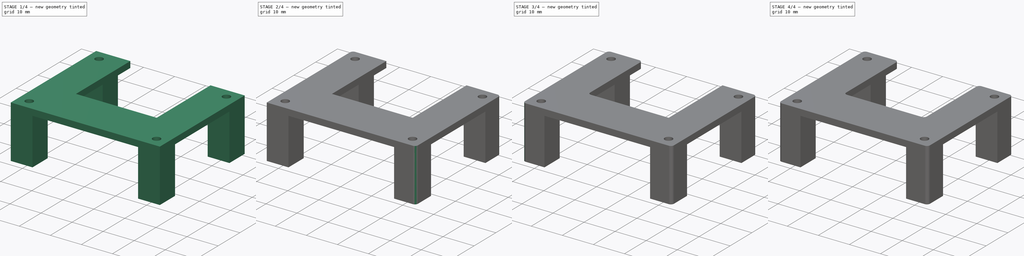
[diagram: build sequence overview — one tinted view per stage of 4, left to right]
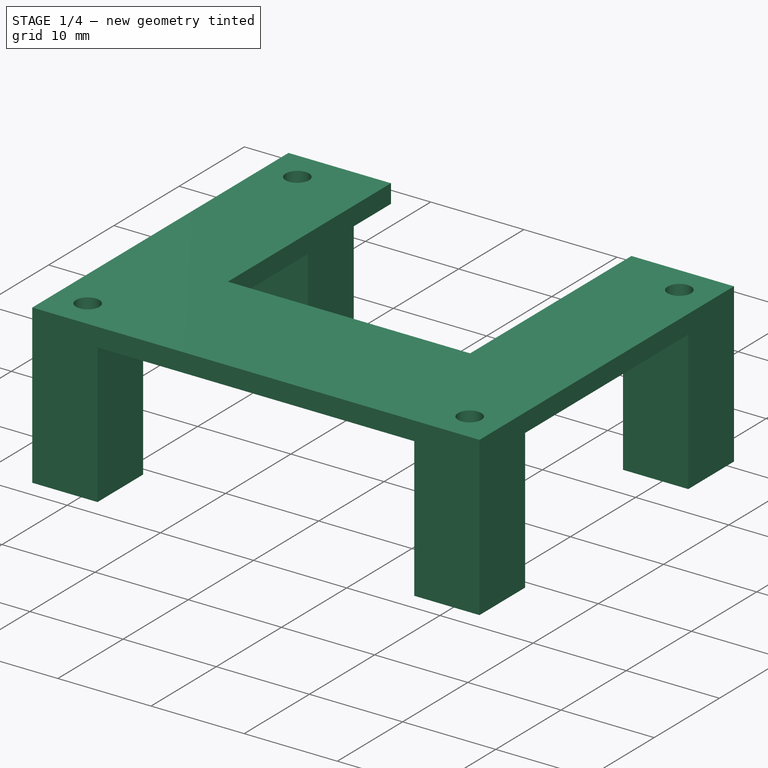
[diagram: stage 1 of 4 — iso view after this stage's code; geometry added in this stage tinted green]
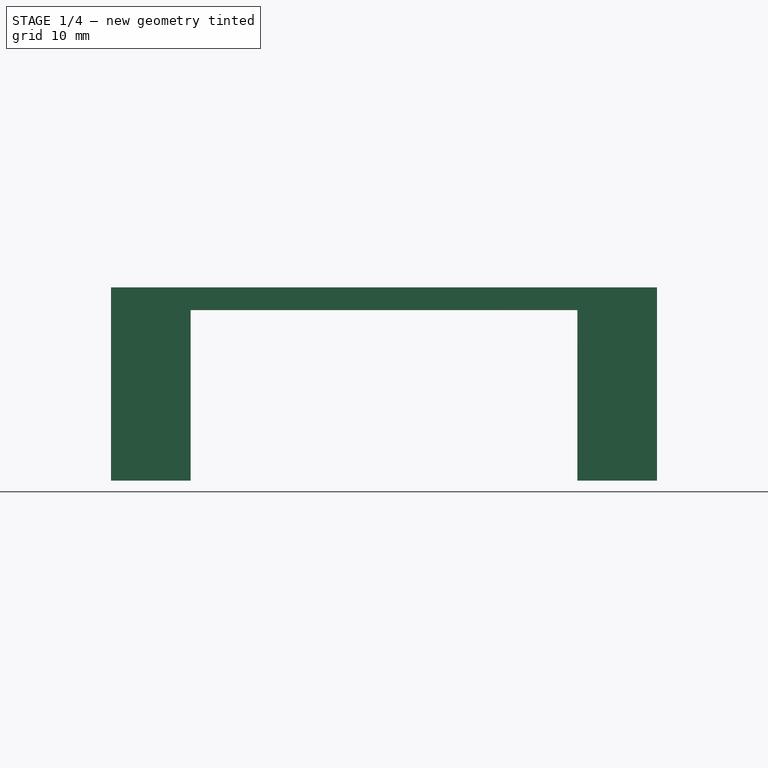
[diagram: stage 1 of 4 — front view after this stage's code; geometry added in this stage tinted green]
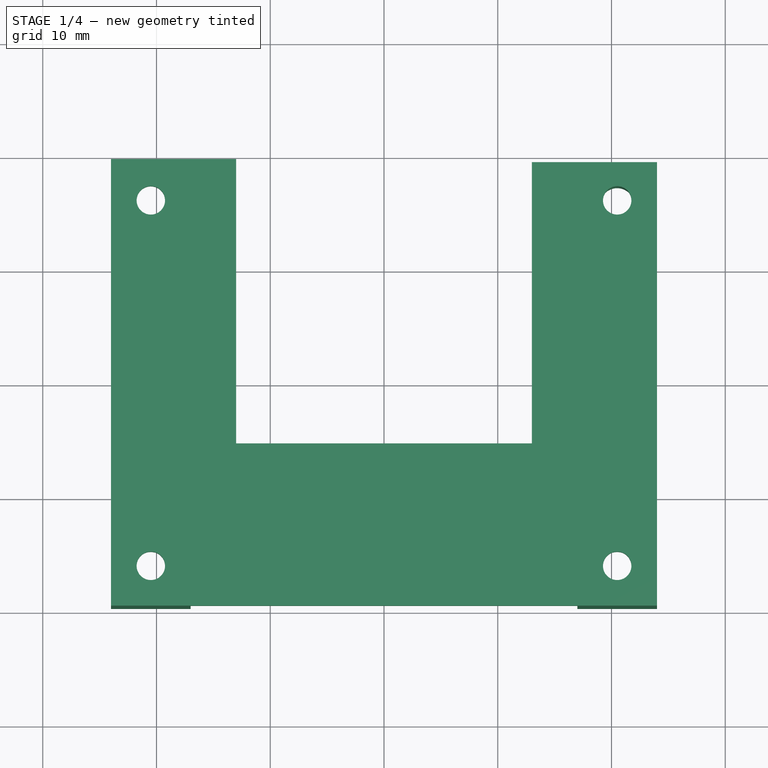
[diagram: stage 1 of 4 — top view after this stage's code; geometry added in this stage tinted green]
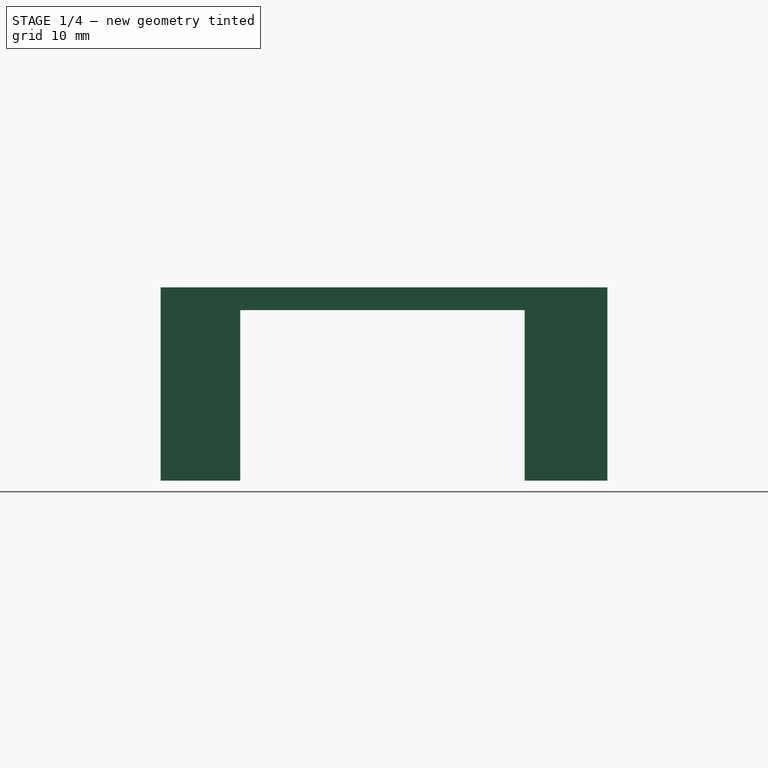
[diagram: stage 1 of 4 — right view after this stage's code; geometry added in this stage tinted green]
FCSTD DOCUMENT  (FreeCAD 0.18R16146 (Git))
Label: thermostat front cover 2
License: All rights reserved
LicenseURL: http://en.wikipedia.org/wiki/All_rights_reserved
objects: PartDesign::Fillet×8, Sketcher::SketchObject×2, PartDesign::Pad×2, PartDesign::Body×1
note: 15 computed .brp shape members not serialized (recipe doc carries the construction recipe); baked Part::Feature solids carry a one-line shape summary decoded from their .brp

FEATURE [Sketcher::SketchObject] Sketch
  MapMode = 5
  Support = -> [XY_Plane]
  sketch-geometry (12):
    g0: LineSegment StartX=24 StartY=19.3644 StartZ=0 EndX=24 EndY=-19.6356 EndZ=0
    g1: LineSegment StartX=24 StartY=-19.6356 StartZ=0 EndX=-24 EndY=-19.6356 EndZ=0
    g2: LineSegment StartX=-24 StartY=-19.6356 StartZ=0 EndX=-24 EndY=19.6356 EndZ=0
    g3: Circle CenterX=-20.5 CenterY=16 CenterZ=0 NormalX=0 NormalY=0 NormalZ=1 AngleXU=0 Radius=1.25
    g4: Circle CenterX=20.5 CenterY=-16.1356 CenterZ=0 NormalX=0 NormalY=0 NormalZ=1 AngleXU=0 Radius=1.25
    g5: Circle CenterX=20.5 CenterY=16 CenterZ=0 NormalX=0 NormalY=0 NormalZ=1 AngleXU=0 Radius=1.25
    g6: Circle CenterX=-20.5 CenterY=-16.1356 CenterZ=0 NormalX=0 NormalY=0 NormalZ=1 AngleXU=0 Radius=1.25
    g7: LineSegment StartX=-24 StartY=19.6356 StartZ=0 EndX=-13 EndY=19.6356 EndZ=0
    g8: LineSegment StartX=-13 StartY=19.6356 StartZ=0 EndX=-13 EndY=-5.36439 EndZ=0
    g9: LineSegment StartX=-13 StartY=-5.36439 StartZ=0 EndX=13 EndY=-5.36439 EndZ=0
    g10: LineSegment StartX=13 StartY=-5.36439 StartZ=0 EndX=13 EndY=19.3644 EndZ=0
    g11: LineSegment StartX=13 StartY=19.3644 StartZ=0 EndX=24 EndY=19.3644 EndZ=0
  constraints (32):
    c: Coincident(g1,g2)
    c: Coincident(g0,g1)
    c: DistanceY(g0,g0) = 39
    c: DistanceX(g2,g0) = 48
    c: Radius(g6) = 1.25
    c: Radius(g3) = 1.25
    c: Radius(g5) = 1.25
    c: Radius(g4) = 1.25
    c: Symmetric(g2,g0,g-1)
    c: Distance(g3,g2) = 3.5
    c: Distance(g6,g2) = 3.5
    c: Distance(g6,g1) = 3.5
    c: Distance(g4,g1) = 3.5
    c: Distance(g4,g0) = 3.5
    c: Distance(g5,g0) = 3.5
    c: Vertical(g2)
    c: Vertical(g0)
    c: Horizontal(g1)
    c: Coincident(g2,g7)
    c: Horizontal(g7)
    c: Coincident(g7,g8)
    c: Vertical(g8)
    c: Coincident(g8,g9)
    c: Horizontal(g9)
    c: Coincident(g9,g10)
    c: Vertical(g10)
    c: Coincident(g10,g11)
    c: Coincident(g11,g0)
    c: Horizontal(g11)
    c: DistanceX(g7,g7) = 11
    c: DistanceX(g11,g11) = 11
    c: DistanceY(g8,g8) = 25
FEATURE [PartDesign::Pad] Pad
  Length = 2
  Length2 = 100
  Profile = -> Sketch
  Type = 0
FEATURE [Sketcher::SketchObject] Sketch001
  ExternalGeometry = -> [Sketch]
  MapMode = 5
  Support = -> [XY_Plane]
  sketch-geometry (20):
    g0: LineSegment StartX=-24 StartY=19.6356 StartZ=0 EndX=-17 EndY=19.6356 EndZ=0
    g1: LineSegment StartX=-17 StartY=19.6356 StartZ=0 EndX=-17 EndY=12.6356 EndZ=0
    g2: LineSegment StartX=-17 StartY=12.6356 StartZ=0 EndX=-24 EndY=12.6356 EndZ=0
    g3: LineSegment StartX=-24 StartY=12.6356 StartZ=0 EndX=-24 EndY=19.6356 EndZ=0
    g4: LineSegment StartX=17 StartY=19.3644 StartZ=0 EndX=24 EndY=19.3644 EndZ=0
    g5: LineSegment StartX=24 StartY=19.3644 StartZ=0 EndX=24 EndY=12.3644 EndZ=0
    g6: LineSegment StartX=24 StartY=12.3644 StartZ=0 EndX=17 EndY=12.3644 EndZ=0
    g7: LineSegment StartX=17 StartY=12.3644 StartZ=0 EndX=17 EndY=19.3644 EndZ=0
    g8: LineSegment StartX=-24 StartY=-12.6356 StartZ=0 EndX=-17 EndY=-12.6356 EndZ=0
    g9: LineSegment StartX=-17 StartY=-12.6356 StartZ=0 EndX=-17 EndY=-19.6356 EndZ=0
    g10: LineSegment StartX=-17 StartY=-19.6356 StartZ=0 EndX=-24 EndY=-19.6356 EndZ=0
    g11: LineSegment StartX=-24 StartY=-19.6356 StartZ=0 EndX=-24 EndY=-12.6356 EndZ=0
    g12: LineSegment StartX=17 StartY=-12.6356 StartZ=0 EndX=24 EndY=-12.6356 EndZ=0
    g13: LineSegment StartX=24 StartY=-12.6356 StartZ=0 EndX=24 EndY=-19.6356 EndZ=0
    g14: LineSegment StartX=24 StartY=-19.6356 StartZ=0 EndX=17 EndY=-19.6356 EndZ=0
    g15: LineSegment StartX=17 StartY=-19.6356 StartZ=0 EndX=17 EndY=-12.6356 EndZ=0
    g16: Circle CenterX=-20.5 CenterY=16.1356 CenterZ=0 NormalX=0 NormalY=0 NormalZ=1 AngleXU=0 Radius=1.5
    g17: Circle CenterX=-20.5 CenterY=-16.1356 CenterZ=0 NormalX=0 NormalY=0 NormalZ=1 AngleXU=0 Radius=1.5
    g18: Circle CenterX=20.5 CenterY=-16.1356 CenterZ=0 NormalX=0 NormalY=0 NormalZ=1 AngleXU=0 Radius=1.5
    g19: Circle CenterX=20.5 CenterY=15.8644 CenterZ=0 NormalX=0 NormalY=0 NormalZ=1 AngleXU=0 Radius=1.5
  constraints (52):
    c: Coincident(g0,g1)
    c: Coincident(g1,g2)
    c: Coincident(g2,g3)
    c: Coincident(g3,g0)
    c: Horizontal(g0)
    c: Horizontal(g2)
    c: Vertical(g1)
    c: Vertical(g3)
    c: DistanceY(g3,g3) = 7
    c: Equal(g3,g0)
    c: Coincident(g4,g5)
    c: Coincident(g5,g6)
    c: Coincident(g6,g7)
    c: Coincident(g7,g4)
    c: Horizontal(g4)
    c: Horizontal(g6)
    c: Vertical(g5)
    c: Vertical(g7)
    c: Coincident(g8,g9)
    c: Coincident(g9,g10)
    c: Coincident(g10,g11)
    c: Coincident(g11,g8)
    c: Horizontal(g8)
    c: Horizontal(g10)
    c: Vertical(g9)
    c: Vertical(g11)
    c: Coincident(g12,g13)
    c: Coincident(g13,g14)
    c: Coincident(g14,g15)
    c: Coincident(g15,g12)
    c: Horizontal(g12)
    c: Horizontal(g14)
    c: Vertical(g13)
    c: Vertical(g15)
    c: Equal(g0,g8)
    c: Equal(g0,g12)
    c: Equal(g0,g4)
    c: Equal(g1,g7)
    c: Equal(g1,g9)
    c: Equal(g1,g15)
    c: Coincident(g0,g-4)
    c: Coincident(g10,g-5)
    c: Coincident(g13,g-6)
    c: Coincident(g4,g-7)
    c: Symmetric(g0,g1,g16)
    c: Radius(g16) = 1.5
    c: Symmetric(g8,g9,g17)
    c: Symmetric(g12,g13,g18)
    c: Symmetric(g4,g5,g19)
    c: Equal(g16,g17)
    c: Equal(g16,g19)
    c: Equal(g16,g18)
FEATURE [PartDesign::Pad] Pad001
  BaseFeature = -> Pad
  Length = 15
  Length2 = 100
  Profile = -> Sketch001
  Reversed = true
  Type = 0
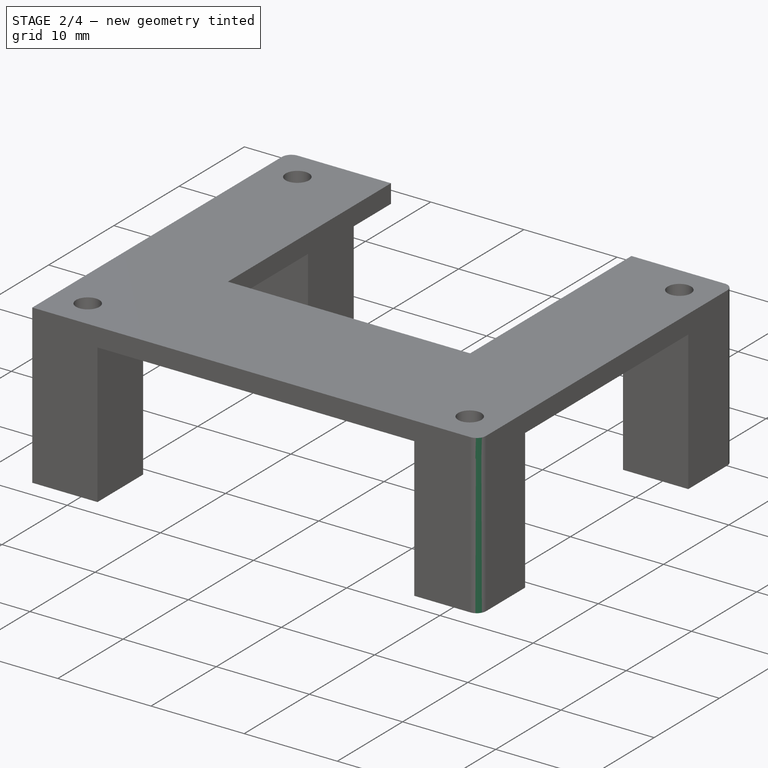
[diagram: stage 2 of 4 — iso view after this stage's code; geometry added in this stage tinted green]
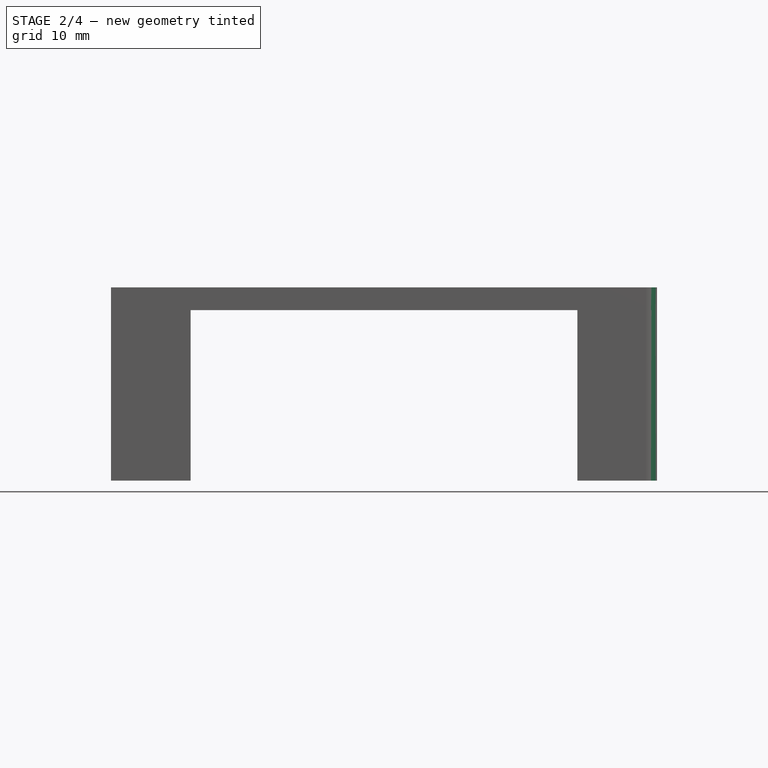
[diagram: stage 2 of 4 — front view after this stage's code; geometry added in this stage tinted green]
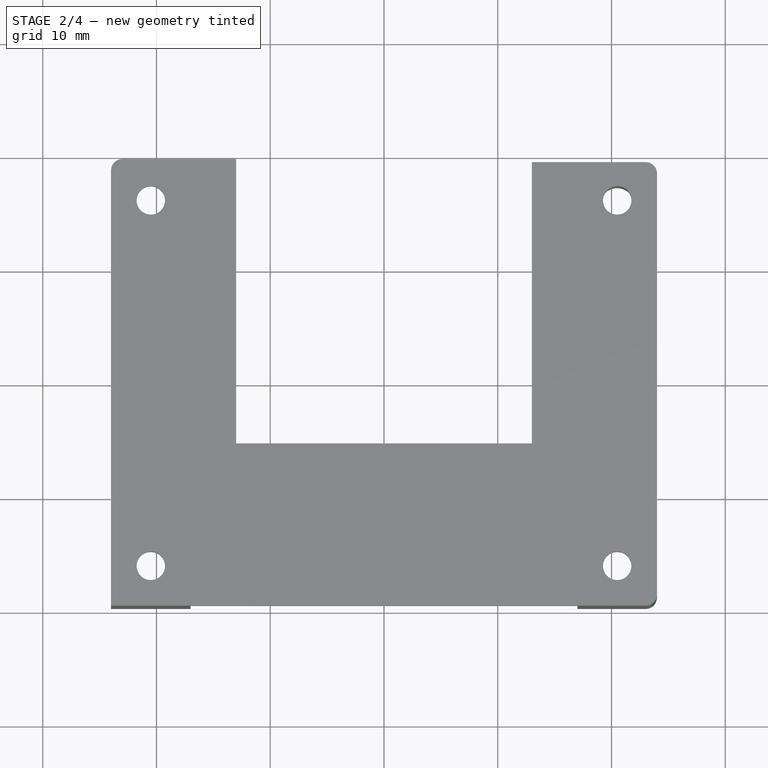
[diagram: stage 2 of 4 — top view after this stage's code; geometry added in this stage tinted green]
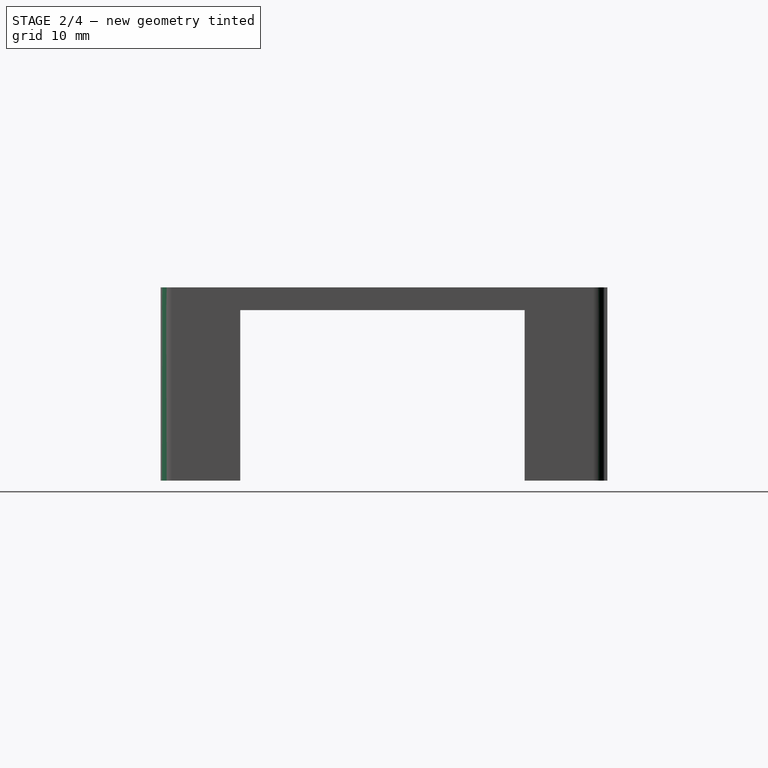
[diagram: stage 2 of 4 — right view after this stage's code; geometry added in this stage tinted green]
FEATURE [PartDesign::Fillet] Fillet
  Base = -> Pad001 [Edge33,Edge2]
  BaseFeature = -> Pad001
  Radius = 1
FEATURE [PartDesign::Fillet] Fillet001
  Base = -> Fillet [Edge6,Edge39]
  BaseFeature = -> Fillet
  Radius = 1
FEATURE [PartDesign::Fillet] Fillet002
  Base = -> Fillet001 [Edge51,Edge94]
  BaseFeature = -> Fillet001
  Radius = 1
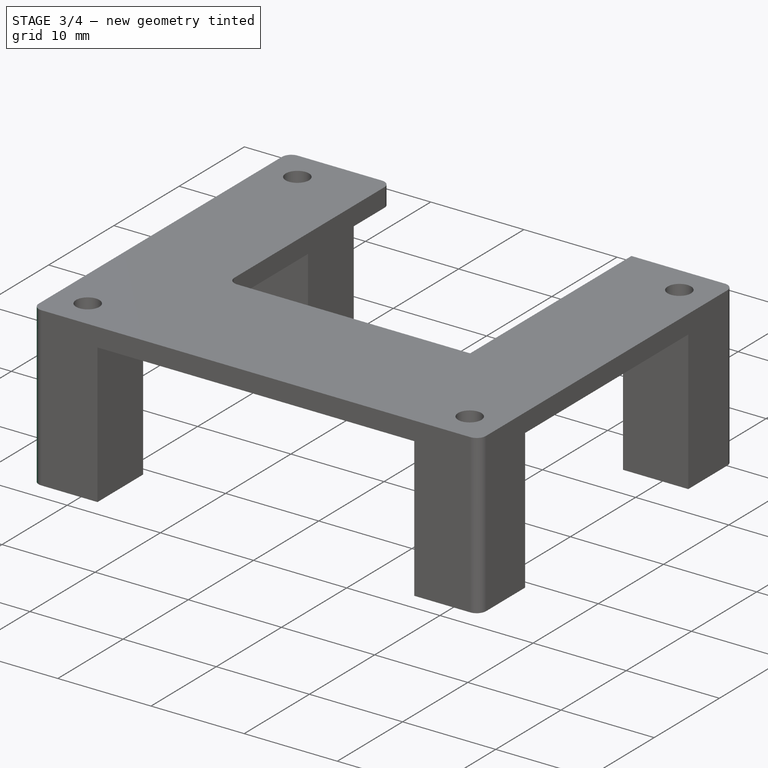
[diagram: stage 3 of 4 — iso view after this stage's code; geometry added in this stage tinted green]
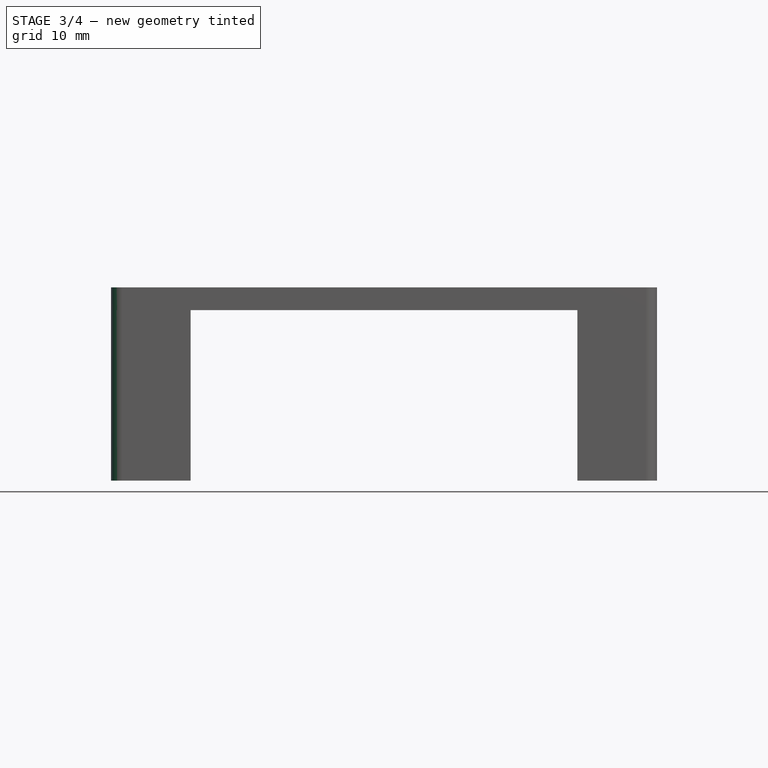
[diagram: stage 3 of 4 — front view after this stage's code; geometry added in this stage tinted green]
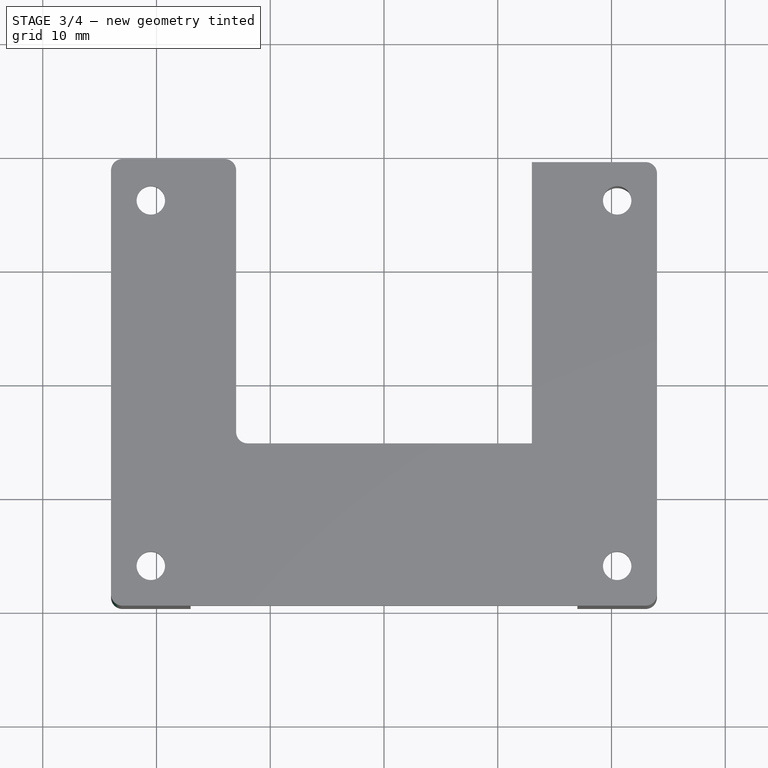
[diagram: stage 3 of 4 — top view after this stage's code; geometry added in this stage tinted green]
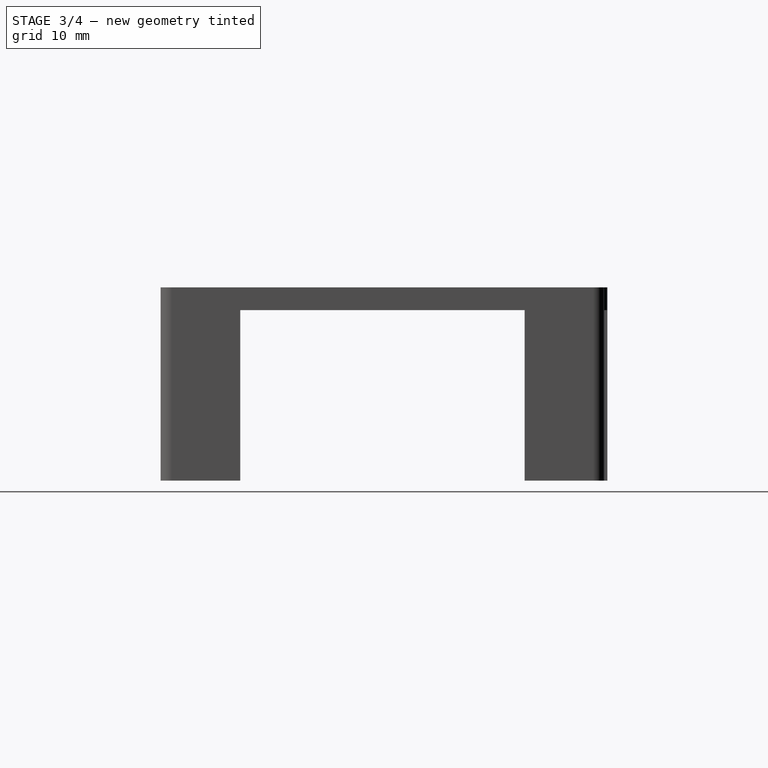
[diagram: stage 3 of 4 — right view after this stage's code; geometry added in this stage tinted green]
FEATURE [PartDesign::Fillet] Fillet003
  Base = -> Fillet002 [Edge65,Edge20]
  BaseFeature = -> Fillet002
  Radius = 1
FEATURE [PartDesign::Fillet] Fillet004
  Base = -> Fillet003 [Edge32]
  BaseFeature = -> Fillet003
  Radius = 1
FEATURE [PartDesign::Fillet] Fillet005
  Base = -> Fillet004 [Edge27]
  BaseFeature = -> Fillet004
  Radius = 1
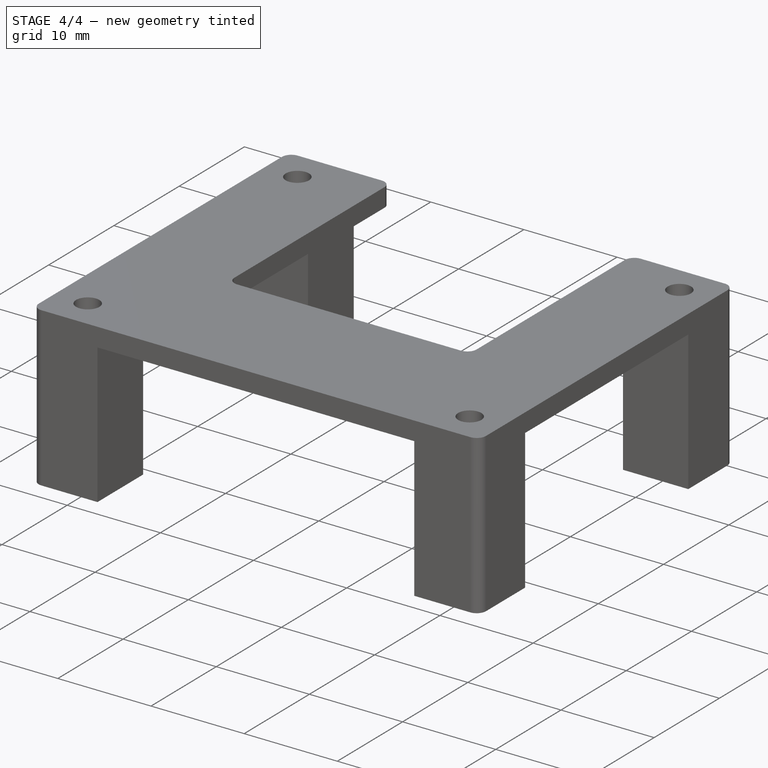
[diagram: stage 4 of 4 — iso view after this stage's code; geometry added in this stage tinted green]
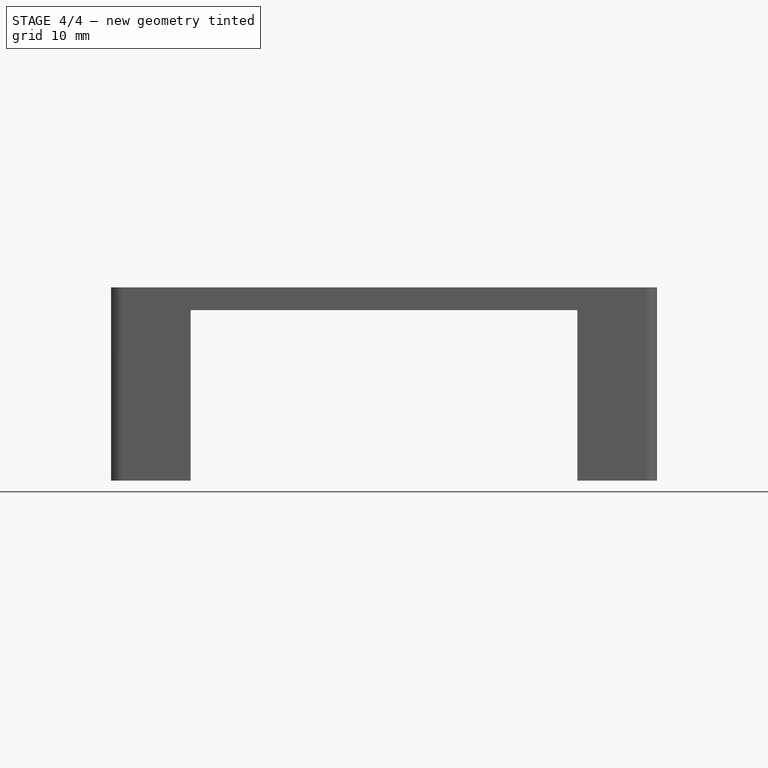
[diagram: stage 4 of 4 — front view after this stage's code; geometry added in this stage tinted green]
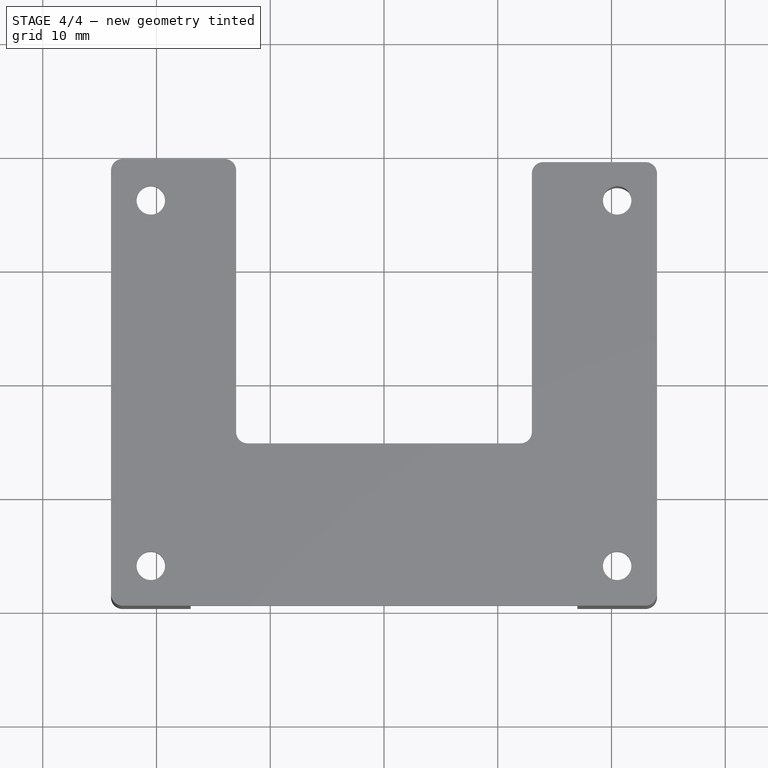
[diagram: stage 4 of 4 — top view after this stage's code; geometry added in this stage tinted green]
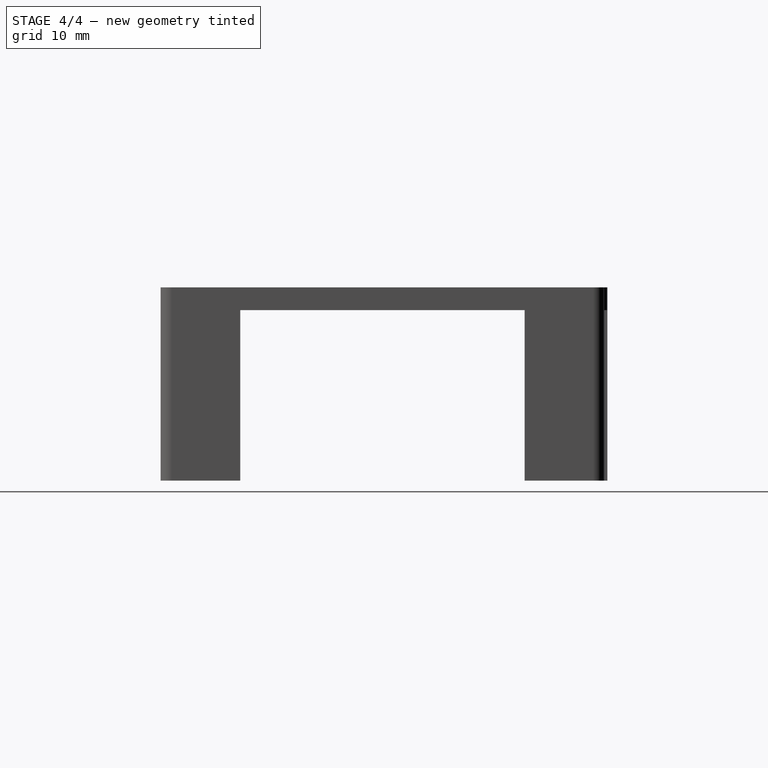
[diagram: stage 4 of 4 — right view after this stage's code; geometry added in this stage tinted green]
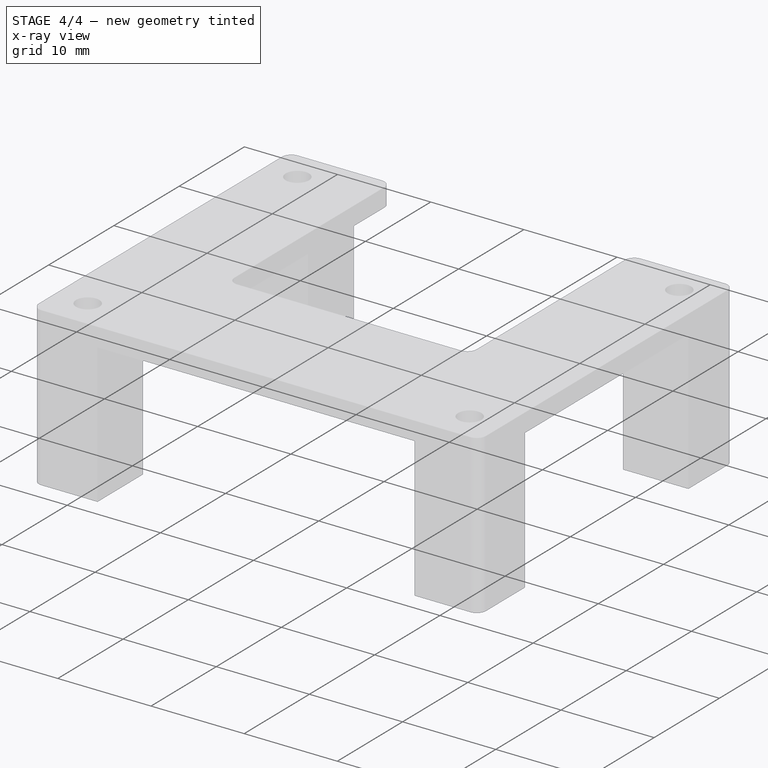
[diagram: stage 4 of 4 — x-ray composite at the iso view; earlier geometry ghosted, this stage's added geometry solid]
FEATURE [PartDesign::Fillet] Fillet006
  Base = -> Fillet005 [Edge27]
  BaseFeature = -> Fillet005
  Radius = 1
FEATURE [PartDesign::Fillet] Fillet007
  Base = -> Fillet006 [Edge28]
  BaseFeature = -> Fillet006
  Radius = 1
FEATURE [PartDesign::Body] Body
  Group = -> [Sketch,Pad,Sketch001,Pad001,Fillet,Fillet001,Fillet002,Fillet003,Fillet004,Fillet005,Fillet006,Fillet007]
  Origin = -> Origin
  Tip = -> Fillet007
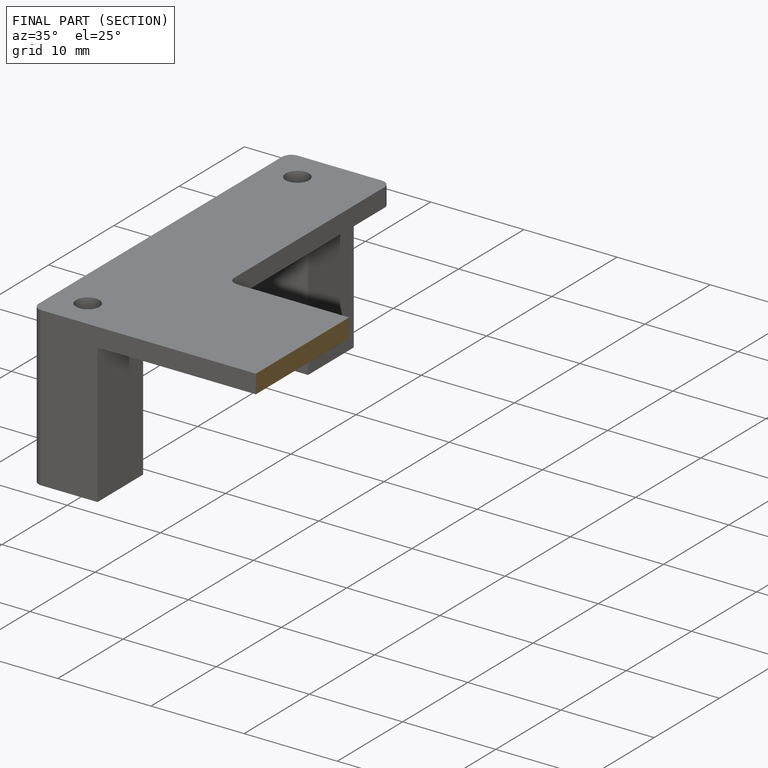
[diagram: finished part — half-section view (interior)]
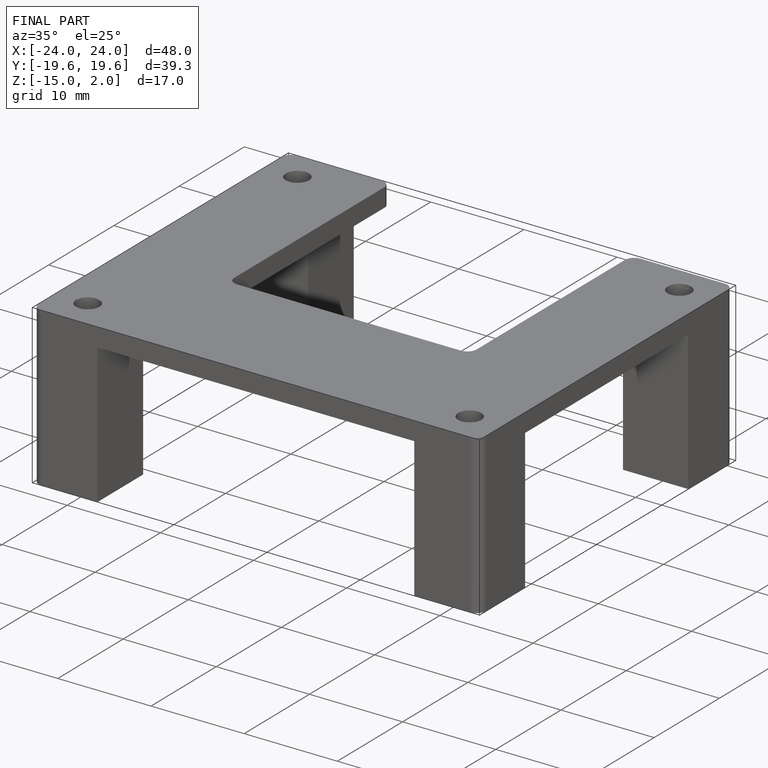
[diagram: finished part — iso view with bounding-box wireframe]
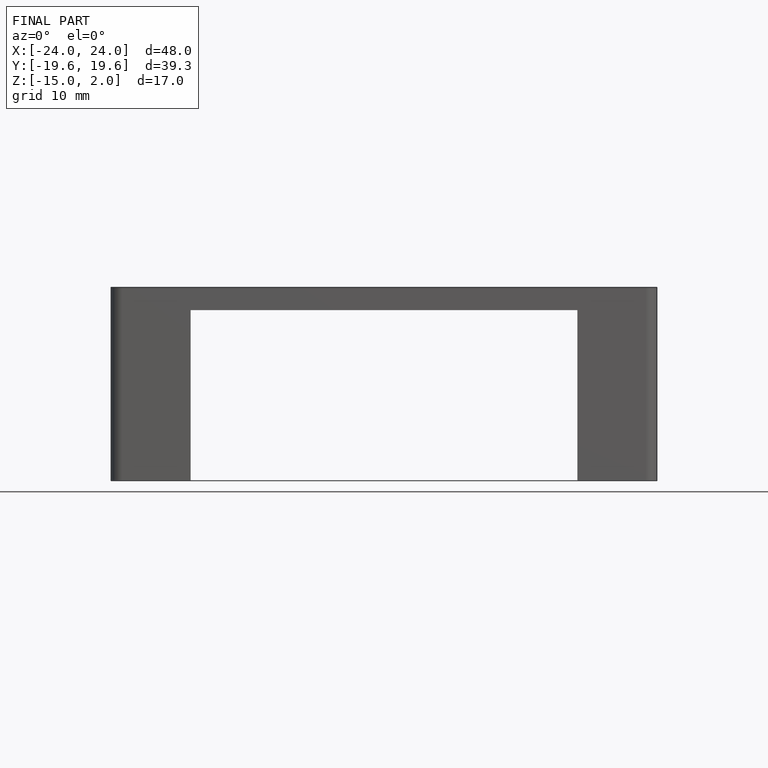
[diagram: finished part — front view with bounding-box wireframe]
